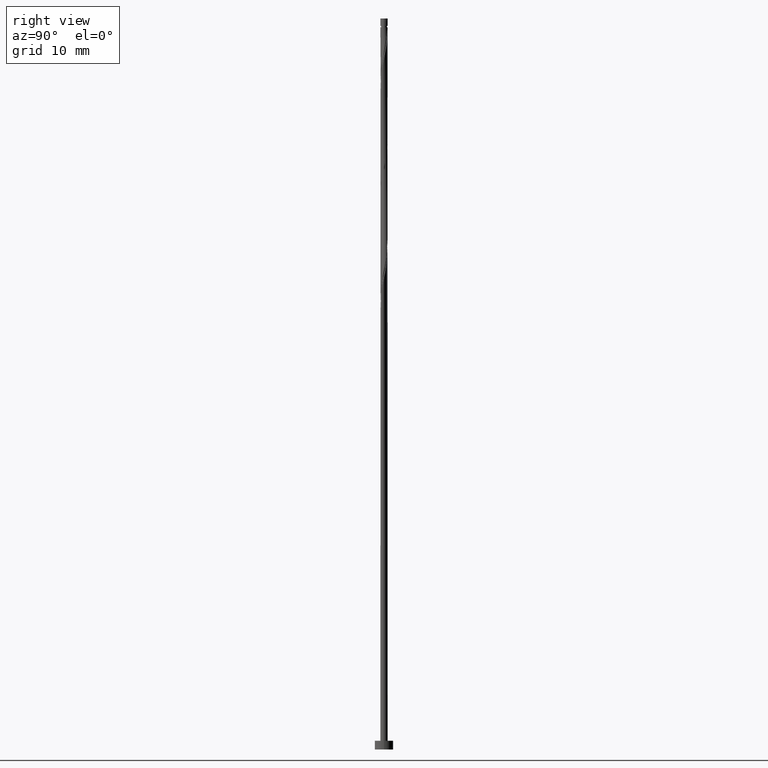
[diagram: clean part render]
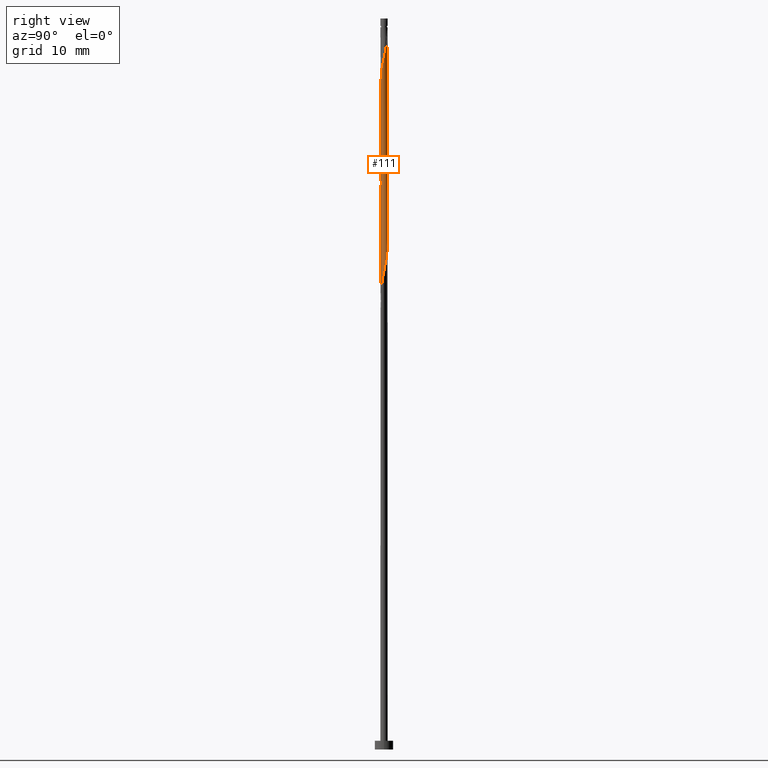
[diagram: same view with one face highlighted and labeled with its STEP entity id]
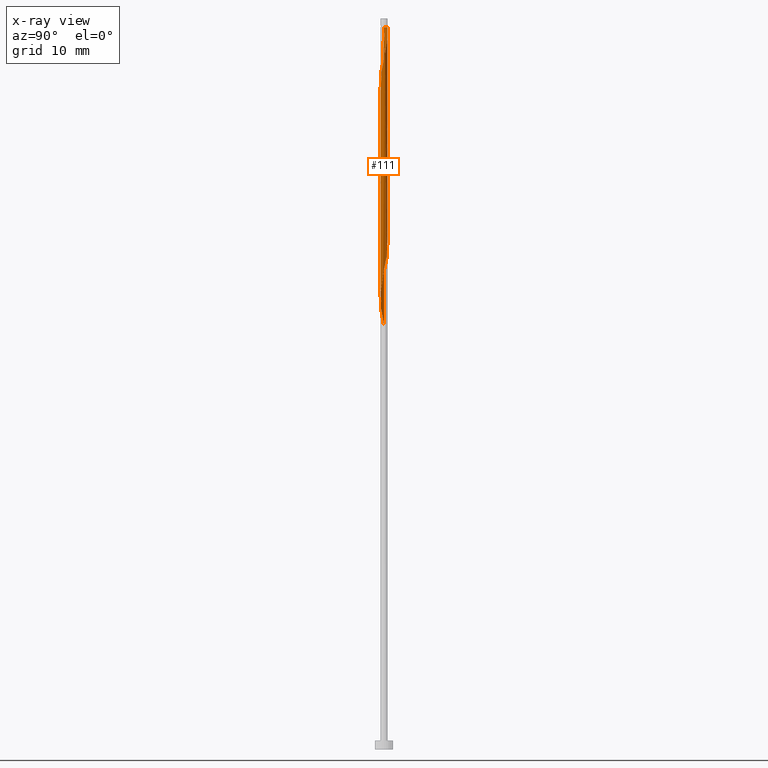
[diagram: x-ray of the same camera — body ghosted, the highlighted face saturated]
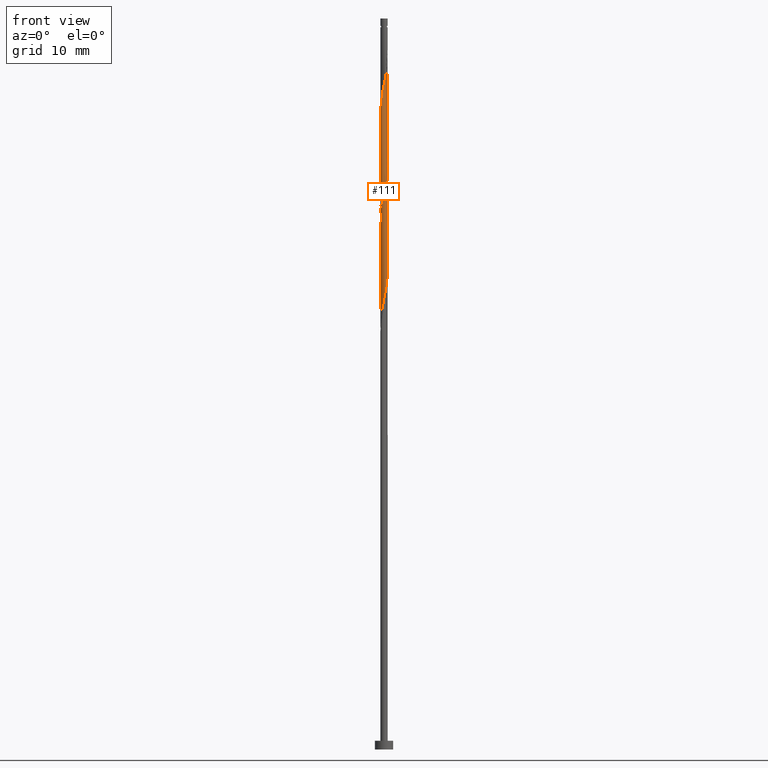
[diagram: same view with one face highlighted and labeled with its STEP entity id]
A machine part, right view. The second image highlights one B-rep face of the part: STEP entity #111.
The next image is the same camera in x-ray: the body ghosted, the highlighted face saturated — about 0% of this face is hidden behind the body in this view.
A second angle (front view) of the same face is appended — the face is thin or edge-on in the first view.
In plain terms, the highlighted cylindrical surface (bore or boss wall) has radius 0.5 mm, axis along (-0, -0, -1).
Its self-contained STEP definition (entity closure, byte-faithful):
#1 = EDGE_CURVE ( 'NONE', #555, #401, #509, .T. ) ;
#5 = CARTESIAN_POINT ( 'NONE',  ( -0.3362772466861005394, -0.3803819322636881606, 60.04999999999998295 ) ) ;
#15 = CARTESIAN_POINT ( 'NONE',  ( -0.5000000000000000000, 0.000000000000000000, 100.0000000000000000 ) ) ;
#20 = LINE ( 'NONE', #15, #436 ) ;
#22 = CARTESIAN_POINT ( 'NONE',  ( -0.5000000000000006661, 1.559254633332027816E-16, 88.02776939948988399 ) ) ;
#25 = CARTESIAN_POINT ( 'NONE',  ( 0.3746030759990445214, -0.3311684396980708600, 78.80000000000002558 ) ) ;
#33 = CARTESIAN_POINT ( 'NONE',  ( 0.4652780234504772516, -0.1830747412780305561, 79.63333333333333997 ) ) ;
#40 = CARTESIAN_POINT ( 'NONE',  ( -0.4460955302404527312, -0.2424285027197316256, 74.21666666666666856 ) ) ;
#49 = CARTESIAN_POINT ( 'NONE',  ( -0.1612817931379151581, 0.4814156044766936260, 85.04999999999996874 ) ) ;
#61 = CARTESIAN_POINT ( 'NONE',  ( 0.1858989642578099122, 0.4724556869372143475, 68.38333333333333997 ) ) ;
#64 = CARTESIAN_POINT ( 'NONE',  ( -0.4652780234504773071, -0.1830747412780305006, 87.96666666666666856 ) ) ;
#70 = CARTESIAN_POINT ( 'NONE',  ( 0.2387454690295330029, 0.4393183367648896831, 97.13333333333333997 ) ) ;
#76 = CARTESIAN_POINT ( 'NONE',  ( 0.4741018197097064957, 0.1588315603019300470, 66.29999999999999716 ) ) ;
#88 = CARTESIAN_POINT ( 'NONE',  ( 0.09949874371066202983, 0.4900000000000007683, 68.80000000000001137 ) ) ;
#101 = CARTESIAN_POINT ( 'NONE',  ( 0.1612817931379155190, 0.4814156044766936260, 97.54999999999999716 ) ) ;
#111 = ADVANCED_FACE ( 'NONE', ( #207 ), #175, .T. ) ;
#114 = DIRECTION ( 'NONE',  ( -0.000000000000000000, -0.000000000000000000, -1.000000000000000000 ) ) ;
#125 = CARTESIAN_POINT ( 'NONE',  ( -0.1858989642578100510, -0.4724556869372142365, 60.88333333333333286 ) ) ;
#137 = CARTESIAN_POINT ( 'NONE',  ( 0.4741018197097064957, 0.1588315603019300470, 81.29999999999999716 ) ) ;
#148 = CARTESIAN_POINT ( 'NONE',  ( -0.3362772466861005394, -0.3803819322636881606, 75.05000000000001137 ) ) ;
#173 = ORIENTED_EDGE ( 'NONE', *, *, #388, .F. ) ;
#174 = CARTESIAN_POINT ( 'NONE',  ( -0.1612817931379152137, -0.4814156044766937370, 90.05000000000002558 ) ) ;
#175 = CYLINDRICAL_SURFACE ( 'NONE', #521, 0.5000000000000000000 ) ;
#178 = CARTESIAN_POINT ( 'NONE',  ( 0.5021081091789604267, 0.07523461788412814932, 65.88333333333332575 ) ) ;
#180 = DIRECTION ( 'NONE',  ( -0.000000000000000000, -0.000000000000000000, -1.000000000000000000 ) ) ;
#192 = CARTESIAN_POINT ( 'NONE',  ( -0.3162091449211504313, 0.3972210690530858512, 70.88333333333331154 ) ) ;
#193 = VERTEX_POINT ( 'NONE', #830 ) ;
#202 = CARTESIAN_POINT ( 'NONE',  ( -0.5000000000000014433, -0.08152718591022664607, 58.41469696061894012 ) ) ;
#203 = CARTESIAN_POINT ( 'NONE',  ( 0.4998335745014880205, 0.01289952716443851580, 94.63333333333335418 ) ) ;
#207 = FACE_OUTER_BOUND ( 'NONE', #1046, .T. ) ;
#246 = CARTESIAN_POINT ( 'NONE',  ( 0.4998335745014881315, -0.01289952716443870315, 80.46666666666661172 ) ) ;
#253 = CARTESIAN_POINT ( 'NONE',  ( 0.1612817931379150194, -0.4814156044766936260, 77.55000000000002558 ) ) ;
#258 = CARTESIAN_POINT ( 'NONE',  ( -0.1858989642578100510, -0.4724556869372142365, 75.88333333333333997 ) ) ;
#263 = CARTESIAN_POINT ( 'NONE',  ( 0.3362772466861008169, 0.3803819322636879940, 82.54999999999998295 ) ) ;
#284 = CARTESIAN_POINT ( 'NONE',  ( 0.3911863884632766353, 0.3114052174917097404, 82.13333333333333997 ) ) ;
#286 = CARTESIAN_POINT ( 'NONE',  ( -0.3746030759990446324, 0.3311684396980706935, 71.29999999999999716 ) ) ;
#291 = ORIENTED_EDGE ( 'NONE', *, *, #820, .F. ) ;
#306 = CIRCLE ( 'NONE', #1058, 0.5000000000000002220 ) ;
#309 = CARTESIAN_POINT ( 'NONE',  ( 0.4652780234504774182, 0.1830747412780303895, 95.46666666666666856 ) ) ;
#314 = EDGE_CURVE ( 'NONE', #729, #598, #306, .T. ) ;
#333 = CARTESIAN_POINT ( 'NONE',  ( -0.09949874371066196044, -0.4900000000000007683, 61.29999999999999716 ) ) ;
#345 = CARTESIAN_POINT ( 'NONE',  ( 0.5000000000000000000, 6.123233995736766036E-17, 98.79999999999999716 ) ) ;
#348 = ORIENTED_EDGE ( 'NONE', *, *, #350, .T. ) ;
#350 = EDGE_CURVE ( 'NONE', #1362, #193, #20, .T. ) ;
#356 = CARTESIAN_POINT ( 'NONE',  ( 0.4460955302404527867, 0.2424285027197315423, 81.71666666666664014 ) ) ;
#359 = CARTESIAN_POINT ( 'NONE',  ( 0.07409163498720061636, -0.4944799587697402687, 77.13333333333332575 ) ) ;
#379 = CARTESIAN_POINT ( 'NONE',  ( 0.1858989642578099122, 0.4724556869372143475, 83.38333333333332575 ) ) ;
#380 = CARTESIAN_POINT ( 'NONE',  ( 0.4460955302404527867, 0.2424285027197315423, 66.71666666666668277 ) ) ;
#382 = CARTESIAN_POINT ( 'NONE',  ( 0.09949874371066182166, -0.4900000000000008238, 91.30000000000002558 ) ) ;
#388 = EDGE_CURVE ( 'NONE', #1362, #598, #849, .T. ) ;
#392 = CARTESIAN_POINT ( 'NONE',  ( -0.5000000000000000000, 0.000000000000000000, 100.0000000000000000 ) ) ;
#401 = VERTEX_POINT ( 'NONE', #1232 ) ;
#429 = CARTESIAN_POINT ( 'NONE',  ( 0.1612817931379150194, -0.4814156044766936260, 62.54999999999999716 ) ) ;
#433 = CARTESIAN_POINT ( 'NONE',  ( 0.000000000000000000, 0.000000000000000000, 98.79999999999999716 ) ) ;
#435 = EDGE_CURVE ( 'NONE', #729, #555, #1334, .T. ) ;
#436 = VECTOR ( 'NONE', #1066, 1000.000000000000000 ) ;
#450 = CARTESIAN_POINT ( 'NONE',  ( -0.5000000000000006661, 0.006450837166010866576, 87.99715376295075941 ) ) ;
#452 = CARTESIAN_POINT ( 'NONE',  ( -0.5000000000000002220, 0.000000000000000000, 98.79999999999999716 ) ) ;
#455 = CARTESIAN_POINT ( 'NONE',  ( -0.5000000000000007772, -9.803696796398973244E-17, 87.07223060051012453 ) ) ;
#458 = CARTESIAN_POINT ( 'NONE',  ( 0.3162091449211504313, -0.3972210690530859067, 78.38333333333332575 ) ) ;
#464 = CARTESIAN_POINT ( 'NONE',  ( -0.4741018197097065512, -0.1588315603019298805, 73.79999999999999716 ) ) ;
#477 = CARTESIAN_POINT ( 'NONE',  ( 0.09949874371066202983, 0.4900000000000007683, 83.79999999999998295 ) ) ;
#485 = CARTESIAN_POINT ( 'NONE',  ( 0.2610881054719556005, 0.4264188096004509765, 67.96666666666668277 ) ) ;
#486 = ORIENTED_EDGE ( 'NONE', *, *, #435, .F. ) ;
#492 = CARTESIAN_POINT ( 'NONE',  ( 0.07409163498720100494, 0.4944799587697403798, 97.96666666666666856 ) ) ;
#509 =( BOUNDED_CURVE ( )  B_SPLINE_CURVE ( 2, ( #22, #450, #862, #1271, #543, #1280, #564, #1111, #978, #49, #786, #985, #477, #379, #1294, #263, #284, #356, #137, #686, #698 ),
 .UNSPECIFIED., .F., .T. ) 
 B_SPLINE_CURVE_WITH_KNOTS ( ( 3, 2, 2, 2, 2, 2, 2, 2, 2, 2, 3 ),
 ( 0.4295248053855291737, 0.4305555555555555802, 0.4444444444444444198, 0.4583333333333333148, 0.4722222222222222099, 0.4861111111111111049, 0.5000000000000000000, 0.5138888888888888395, 0.5277777777777777901, 0.5416666666666666297, 0.5545248053855290626 ),
 .UNSPECIFIED. ) 
 CURVE ( )  GEOMETRIC_REPRESENTATION_ITEM ( )  RATIONAL_B_SPLINE_CURVE ( ( 0.9071930855141275840, 0.9080659294509750845, 0.9090909090909150558, 0.8952797754656496299, 0.9090909090909150558, 0.8952797754656496299, 0.9090909090909150558, 0.8952797754656496299, 0.9090909090909150558, 0.8952797754656496299, 0.9090909090909150558, 0.8952797754656496299, 0.9090909090909150558, 0.8952797754656496299, 0.9090909090909150558, 0.8952797754656496299, 0.9090909090909150558, 0.8952797754656496299, 0.9090909090909150558, 0.8963047551055897122, 0.9071930855141273620 ) ) 
 REPRESENTATION_ITEM ( '' )  );
#521 = AXIS2_PLACEMENT_3D ( 'NONE', #836, #634, #705 ) ;
#543 = CARTESIAN_POINT ( 'NONE',  ( -0.4652780234504771961, 0.1830747412780305838, 87.13333333333333997 ) ) ;
#546 = CARTESIAN_POINT ( 'NONE',  ( -0.3911863884632766353, -0.3114052174917097404, 59.63333333333333286 ) ) ;
#549 = CARTESIAN_POINT ( 'NONE',  ( -0.4741018197097065512, -0.1588315603019298805, 58.80000000000000426 ) ) ;
#555 = VERTEX_POINT ( 'NONE', #1255 ) ;
#564 = CARTESIAN_POINT ( 'NONE',  ( -0.3746030759990446324, 0.3311684396980706935, 86.29999999999999716 ) ) ;
#570 = CARTESIAN_POINT ( 'NONE',  ( -0.3911863884632766353, -0.3114052174917097404, 74.63333333333331154 ) ) ;
#586 = CARTESIAN_POINT ( 'NONE',  ( -0.5021081091789604267, -0.07523461788412846851, 73.38333333333332575 ) ) ;
#596 = CARTESIAN_POINT ( 'NONE',  ( 0.01309852316351392196, 0.5075443130627870225, 69.21666666666665435 ) ) ;
#598 = VERTEX_POINT ( 'NONE', #760 ) ;
#599 = CARTESIAN_POINT ( 'NONE',  ( 0.3162091449211505423, 0.3972210690530860178, 96.71666666666665435 ) ) ;
#606 = CARTESIAN_POINT ( 'NONE',  ( 0.4998335745014881315, -0.01289952716443870315, 65.46666666666666856 ) ) ;
#634 = DIRECTION ( 'NONE',  ( -0.000000000000000000, -0.000000000000000000, -1.000000000000000000 ) ) ;
#652 = CARTESIAN_POINT ( 'NONE',  ( 0.3162091449211504313, -0.3972210690530859067, 63.38333333333333286 ) ) ;
#669 = CARTESIAN_POINT ( 'NONE',  ( 0.4975590398240158918, -0.1010336722130055764, 80.05000000000002558 ) ) ;
#675 = CARTESIAN_POINT ( 'NONE',  ( -0.09949874371066196044, -0.4900000000000007683, 76.30000000000001137 ) ) ;
#677 = CARTESIAN_POINT ( 'NONE',  ( -0.4998335745014880205, -0.01289952716443847763, 87.13333333333333997 ) ) ;
#681 = VECTOR ( 'NONE', #750, 1000.000000000000000 ) ;
#686 = CARTESIAN_POINT ( 'NONE',  ( 0.5000000000000006661, 0.08152718591022839467, 80.91469696061896855 ) ) ;
#698 = CARTESIAN_POINT ( 'NONE',  ( 0.5000000000000007772, 2.959782747103310096E-16, 80.52776939948985557 ) ) ;
#703 = CARTESIAN_POINT ( 'NONE',  ( -0.2387454690295328918, -0.4393183367648896831, 89.63333333333331154 ) ) ;
#705 = DIRECTION ( 'NONE',  ( -1.000000000000000000, 0.000000000000000000, 0.000000000000000000 ) ) ;
#729 = VERTEX_POINT ( 'NONE', #452 ) ;
#731 = CARTESIAN_POINT ( 'NONE',  ( 0.3746030759990445214, -0.3311684396980708600, 63.80000000000001137 ) ) ;
#742 = ORIENTED_EDGE ( 'NONE', *, *, #857, .F. ) ;
#750 = DIRECTION ( 'NONE',  ( -0.000000000000000000, -0.000000000000000000, -1.000000000000000000 ) ) ;
#760 = CARTESIAN_POINT ( 'NONE',  ( -0.09949874371066166900, 0.4899999999999998801, 98.79999999999999716 ) ) ;
#777 = VERTEX_POINT ( 'NONE', #345 ) ;
#786 = CARTESIAN_POINT ( 'NONE',  ( -0.07409163498720063024, 0.4944799587697402687, 84.63333333333332575 ) ) ;
#797 = CARTESIAN_POINT ( 'NONE',  ( 0.3911863884632766353, 0.3114052174917097404, 67.13333333333333997 ) ) ;
#807 = CARTESIAN_POINT ( 'NONE',  ( 0.3911863884632766908, -0.3114052174917099070, 92.96666666666666856 ) ) ;
#813 = CARTESIAN_POINT ( 'NONE',  ( -0.2387454690295328086, 0.4393183367648896831, 70.46666666666666856 ) ) ;
#819 = CARTESIAN_POINT ( 'NONE',  ( 0.4329970070769386670, -0.2651158103430559243, 64.21666666666665435 ) ) ;
#820 = EDGE_CURVE ( 'NONE', #401, #193, #986, .T. ) ;
#826 = CARTESIAN_POINT ( 'NONE',  ( -0.3746030759990447989, -0.3311684396980705825, 88.79999999999996874 ) ) ;
#830 = CARTESIAN_POINT ( 'NONE',  ( -0.5000000000000006661, -4.855164127740446616E-16, 58.02776939948987689 ) ) ;
#834 = CARTESIAN_POINT ( 'NONE',  ( -0.5000000000000006661, -4.855164127740446616E-16, 58.02776939948987689 ) ) ;
#836 = CARTESIAN_POINT ( 'NONE',  ( 0.000000000000000000, 0.000000000000000000, 100.0000000000000000 ) ) ;
#847 = LINE ( 'NONE', #958, #681 ) ;
#849 =( BOUNDED_CURVE ( )  B_SPLINE_CURVE ( 2, ( #1208, #1195, #677, #997, #64, #1132, #826, #902, #703, #174, #1137, #927, #382, #1227, #1015, #1340, #807, #1156, #1042, #1050, #203, #1248, #309, #1021, #1239, #599, #70, #101, #492, #1145, #896 ),
 .UNSPECIFIED., .F., .T. ) 
 B_SPLINE_CURVE_WITH_KNOTS ( ( 3, 2, 2, 2, 2, 2, 2, 2, 2, 2, 2, 2, 2, 2, 2, 3 ),
 ( 0.5545248053855292847, 0.5555555555555555802, 0.5694444444444444198, 0.5833333333333332593, 0.5972222222222222099, 0.6111111111111112715, 0.6250000000000001110, 0.6388888888888889506, 0.6527777777777779011, 0.6666666666666668517, 0.6805555555555556912, 0.6944444444444446418, 0.7083333333333334814, 0.7222222222222224319, 0.7361111111111113825, 0.7500000000000002220 ),
 .UNSPECIFIED. ) 
 CURVE ( )  GEOMETRIC_REPRESENTATION_ITEM ( )  RATIONAL_B_SPLINE_CURVE ( ( 0.9071930855141279171, 0.9080659294509754176, 0.9090909090909153889, 0.8952797754656498519, 0.9090909090909153889, 0.8952797754656498519, 0.9090909090909153889, 0.8952797754656498519, 0.9090909090909153889, 0.8952797754656498519, 0.9090909090909153889, 0.8952797754656498519, 0.9090909090909153889, 0.8952797754656498519, 0.9090909090909153889, 0.8952797754656498519, 0.9090909090909153889, 0.8952797754656498519, 0.9090909090909153889, 0.8952797754656498519, 0.9090909090909153889, 0.8952797754656498519, 0.9090909090909153889, 0.8952797754656498519, 0.9090909090909153889, 0.8952797754656498519, 0.9090909090909153889, 0.8952797754656498519, 0.9090909090909153889, 0.8952797754656496299, 0.9090909090909156109 ) ) 
 REPRESENTATION_ITEM ( '' )  );
#856 = CARTESIAN_POINT ( 'NONE',  ( 0.07409163498720061636, -0.4944799587697402687, 62.13333333333331865 ) ) ;
#857 = EDGE_CURVE ( 'NONE', #777, #401, #847, .T. ) ;
#862 = CARTESIAN_POINT ( 'NONE',  ( -0.4998335745014880205, 0.01289952716443853141, 87.96666666666666856 ) ) ;
#874 = CARTESIAN_POINT ( 'NONE',  ( 0.2387454690295328086, -0.4393183367648896831, 77.96666666666666856 ) ) ;
#896 = CARTESIAN_POINT ( 'NONE',  ( -0.09949874371066166900, 0.4899999999999998801, 98.80000000000001137 ) ) ;
#902 = CARTESIAN_POINT ( 'NONE',  ( -0.3162091449211504868, -0.3972210690530860178, 89.21666666666668277 ) ) ;
#918 = CARTESIAN_POINT ( 'NONE',  ( 0.4975590398240158918, -0.1010336722130055764, 65.04999999999999716 ) ) ;
#927 = CARTESIAN_POINT ( 'NONE',  ( 0.01309852316351374675, -0.5075443130627872446, 90.88333333333333997 ) ) ;
#946 = CARTESIAN_POINT ( 'NONE',  ( -0.01309852316351412145, -0.5075443130627871335, 61.71666666666667567 ) ) ;
#958 = CARTESIAN_POINT ( 'NONE',  ( 0.5000000000000000000, 6.123233995736766036E-17, 100.0000000000000000 ) ) ;
#978 = CARTESIAN_POINT ( 'NONE',  ( -0.2387454690295328086, 0.4393183367648896831, 85.46666666666665435 ) ) ;
#985 = CARTESIAN_POINT ( 'NONE',  ( 0.01309852316351392196, 0.5075443130627870225, 84.21666666666668277 ) ) ;
#986 =( BOUNDED_CURVE ( )  B_SPLINE_CURVE ( 2, ( #1193, #1286, #246, #669, #33, #1086, #25, #458, #874, #253, #359, #1199, #675, #258, #1103, #148, #570, #40, #464, #586, #1338, #1136, #1006, #1318, #286, #192, #813, #1041, #1011, #596, #88, #61, #485, #1127, #797, #380, #76, #178, #606, #918, #1028, #819, #731, #652, #1068, #429, #856, #946, #333, #125, #1354, #5, #546, #1049, #549, #202, #834 ),
 .UNSPECIFIED., .F., .T. ) 
 B_SPLINE_CURVE_WITH_KNOTS ( ( 3, 2, 2, 2, 2, 2, 2, 2, 2, 2, 2, 2, 2, 2, 2, 2, 2, 2, 2, 2, 2, 2, 2, 2, 2, 2, 2, 2, 3 ),
 ( 0.5545248053855290626, 0.5555555555555555802, 0.5694444444444444198, 0.5833333333333333703, 0.5972222222222222099, 0.6111111111111111605, 0.6250000000000000000, 0.6388888888888888395, 0.6527777777777777901, 0.6666666666666666297, 0.6805555555555555802, 0.6944444444444444198, 0.7083333333333333703, 0.7222222222222222099, 0.7361111111111111605, 0.7500000000000000000, 0.7638888888888888395, 0.7777777777777777901, 0.7916666666666666297, 0.8055555555555555802, 0.8194444444444444198, 0.8333333333333333703, 0.8472222222222222099, 0.8611111111111111605, 0.8750000000000000000, 0.8888888888888888395, 0.9027777777777777901, 0.9166666666666666297, 0.9295248053855293957 ),
 .UNSPECIFIED. ) 
 CURVE ( )  GEOMETRIC_REPRESENTATION_ITEM ( )  RATIONAL_B_SPLINE_CURVE ( ( 0.9071930855141273620, 0.9080659294509749735, 0.9090909090909150558, 0.8952797754656496299, 0.9090909090909150558, 0.8952797754656496299, 0.9090909090909150558, 0.8952797754656496299, 0.9090909090909150558, 0.8952797754656496299, 0.9090909090909150558, 0.8952797754656496299, 0.9090909090909150558, 0.8952797754656496299, 0.9090909090909150558, 0.8952797754656496299, 0.9090909090909150558, 0.8952797754656496299, 0.9090909090909150558, 0.8952797754656496299, 0.9090909090909150558, 0.8952797754656496299, 0.9090909090909150558, 0.8952797754656496299, 0.9090909090909150558, 0.8952797754656496299, 0.9090909090909150558, 0.8952797754656496299, 0.9090909090909150558, 0.8952797754656496299, 0.9090909090909150558, 0.8952797754656496299, 0.9090909090909150558, 0.8952797754656496299, 0.9090909090909150558, 0.8952797754656496299, 0.9090909090909150558, 0.8952797754656496299, 0.9090909090909150558, 0.8952797754656496299, 0.9090909090909150558, 0.8952797754656496299, 0.9090909090909150558, 0.8952797754656496299, 0.9090909090909150558, 0.8952797754656496299, 0.9090909090909150558, 0.8952797754656496299, 0.9090909090909150558, 0.8952797754656496299, 0.9090909090909150558, 0.8952797754656496299, 0.9090909090909150558, 0.8952797754656496299, 0.9090909090909150558, 0.8963047551055893791, 0.9071930855141279171 ) ) 
 REPRESENTATION_ITEM ( '' )  );
#997 = CARTESIAN_POINT ( 'NONE',  ( -0.4975590398240160028, -0.1010336722130054932, 87.55000000000001137 ) ) ;
#1001 = ORIENTED_EDGE ( 'NONE', *, *, #314, .T. ) ;
#1006 = CARTESIAN_POINT ( 'NONE',  ( -0.4652780234504771961, 0.1830747412780305838, 72.13333333333333997 ) ) ;
#1011 = CARTESIAN_POINT ( 'NONE',  ( -0.07409163498720063024, 0.4944799587697402687, 69.63333333333333997 ) ) ;
#1015 = CARTESIAN_POINT ( 'NONE',  ( 0.2610881054719552119, -0.4264188096004513095, 92.13333333333335418 ) ) ;
#1021 = CARTESIAN_POINT ( 'NONE',  ( 0.4329970070769391111, 0.2651158103430553137, 95.88333333333333997 ) ) ;
#1028 = CARTESIAN_POINT ( 'NONE',  ( 0.4652780234504772516, -0.1830747412780305561, 64.63333333333333997 ) ) ;
#1041 = CARTESIAN_POINT ( 'NONE',  ( -0.1612817931379151581, 0.4814156044766936260, 70.05000000000001137 ) ) ;
#1042 = CARTESIAN_POINT ( 'NONE',  ( 0.4741018197097065512, -0.1588315603019302691, 93.80000000000001137 ) ) ;
#1046 = EDGE_LOOP ( 'NONE', ( #486, #1001, #173, #348, #291, #742, #1328, #1292 ) ) ;
#1049 = CARTESIAN_POINT ( 'NONE',  ( -0.4460955302404527312, -0.2424285027197316256, 59.21666666666666146 ) ) ;
#1050 = CARTESIAN_POINT ( 'NONE',  ( 0.5021081091789604267, -0.07523461788412882933, 94.21666666666666856 ) ) ;
#1058 = AXIS2_PLACEMENT_3D ( 'NONE', #433, #114, #1078 ) ;
#1066 = DIRECTION ( 'NONE',  ( -0.000000000000000000, -0.000000000000000000, -1.000000000000000000 ) ) ;
#1068 = CARTESIAN_POINT ( 'NONE',  ( 0.2387454690295328086, -0.4393183367648896831, 62.96666666666668277 ) ) ;
#1078 = DIRECTION ( 'NONE',  ( -1.000000000000000000, 0.000000000000000000, 0.000000000000000000 ) ) ;
#1086 = CARTESIAN_POINT ( 'NONE',  ( 0.4329970070769386670, -0.2651158103430559243, 79.21666666666665435 ) ) ;
#1103 = CARTESIAN_POINT ( 'NONE',  ( -0.2610881054719552674, -0.4264188096004511985, 75.46666666666665435 ) ) ;
#1111 = CARTESIAN_POINT ( 'NONE',  ( -0.3162091449211504313, 0.3972210690530858512, 85.88333333333335418 ) ) ;
#1127 = CARTESIAN_POINT ( 'NONE',  ( 0.3362772466861008169, 0.3803819322636879940, 67.54999999999999716 ) ) ;
#1132 = CARTESIAN_POINT ( 'NONE',  ( -0.4329970070769388890, -0.2651158103430555912, 88.38333333333331154 ) ) ;
#1136 = CARTESIAN_POINT ( 'NONE',  ( -0.4975590398240158918, 0.1010336722130055070, 72.54999999999999716 ) ) ;
#1137 = CARTESIAN_POINT ( 'NONE',  ( -0.07409163498720072738, -0.4944799587697403798, 90.46666666666665435 ) ) ;
#1145 = CARTESIAN_POINT ( 'NONE',  ( -0.01309852316351531321, 0.5075443130627873556, 98.38333333333332575 ) ) ;
#1156 = CARTESIAN_POINT ( 'NONE',  ( 0.4460955302404527867, -0.2424285027197316811, 93.38333333333333997 ) ) ;
#1185 = VECTOR ( 'NONE', #180, 1000.000000000000000 ) ;
#1193 = CARTESIAN_POINT ( 'NONE',  ( 0.5000000000000007772, 2.959782747103310096E-16, 80.52776939948985557 ) ) ;
#1195 = CARTESIAN_POINT ( 'NONE',  ( -0.5000000000000007772, -0.006450837166011485872, 87.10284623704926332 ) ) ;
#1199 = CARTESIAN_POINT ( 'NONE',  ( -0.01309852316351412145, -0.5075443130627871335, 76.71666666666666856 ) ) ;
#1208 = CARTESIAN_POINT ( 'NONE',  ( -0.5000000000000007772, -9.803696796398973244E-17, 87.07223060051012453 ) ) ;
#1227 = CARTESIAN_POINT ( 'NONE',  ( 0.1858989642578097734, -0.4724556869372145695, 91.71666666666665435 ) ) ;
#1232 = CARTESIAN_POINT ( 'NONE',  ( 0.5000000000000007772, 2.959782747103310096E-16, 80.52776939948985557 ) ) ;
#1239 = CARTESIAN_POINT ( 'NONE',  ( 0.3746030759990447989, 0.3311684396980708045, 96.30000000000001137 ) ) ;
#1248 = CARTESIAN_POINT ( 'NONE',  ( 0.4975590398240160028, 0.1010336722130053960, 95.04999999999998295 ) ) ;
#1255 = CARTESIAN_POINT ( 'NONE',  ( -0.5000000000000006661, 1.559254633332027816E-16, 88.02776939948988399 ) ) ;
#1271 = CARTESIAN_POINT ( 'NONE',  ( -0.4975590398240158918, 0.1010336722130055070, 87.54999999999999716 ) ) ;
#1280 = CARTESIAN_POINT ( 'NONE',  ( -0.4329970070769387780, 0.2651158103430555912, 86.71666666666666856 ) ) ;
#1286 = CARTESIAN_POINT ( 'NONE',  ( 0.5000000000000007772, -0.006450837166010383456, 80.49715376295073099 ) ) ;
#1292 = ORIENTED_EDGE ( 'NONE', *, *, #1, .F. ) ;
#1294 = CARTESIAN_POINT ( 'NONE',  ( 0.2610881054719556005, 0.4264188096004509765, 82.96666666666664014 ) ) ;
#1318 = CARTESIAN_POINT ( 'NONE',  ( -0.4329970070769387780, 0.2651158103430555912, 71.71666666666664014 ) ) ;
#1328 = ORIENTED_EDGE ( 'NONE', *, *, #857, .T. ) ;
#1334 = LINE ( 'NONE', #392, #1185 ) ;
#1338 = CARTESIAN_POINT ( 'NONE',  ( -0.4998335745014880205, 0.01289952716443853141, 72.96666666666664014 ) ) ;
#1340 = CARTESIAN_POINT ( 'NONE',  ( 0.3362772466861005394, -0.3803819322636883271, 92.55000000000001137 ) ) ;
#1354 = CARTESIAN_POINT ( 'NONE',  ( -0.2610881054719552674, -0.4264188096004511985, 60.46666666666666146 ) ) ;
#1362 = VERTEX_POINT ( 'NONE', #455 ) ;